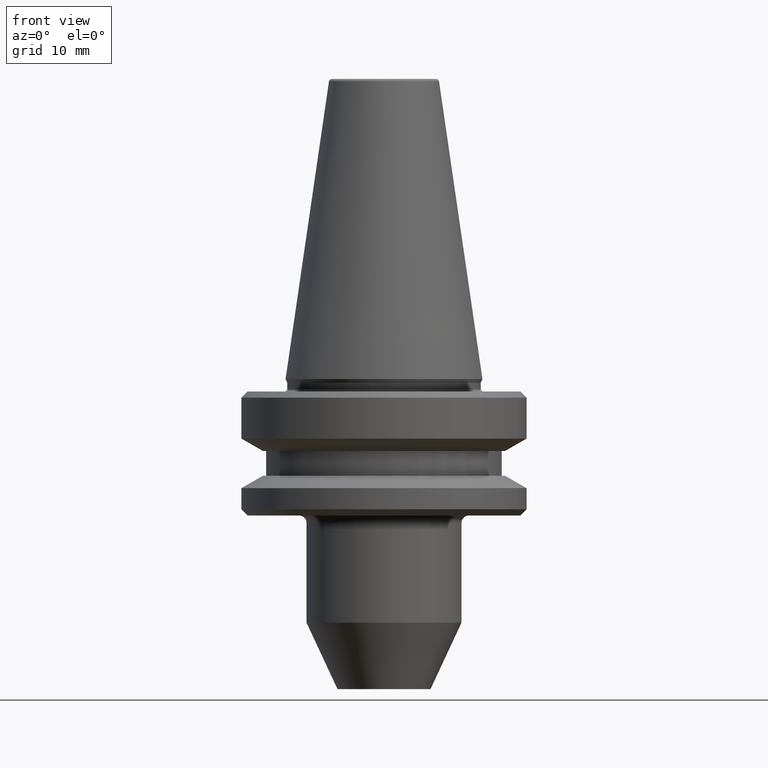
[diagram: clean part render]
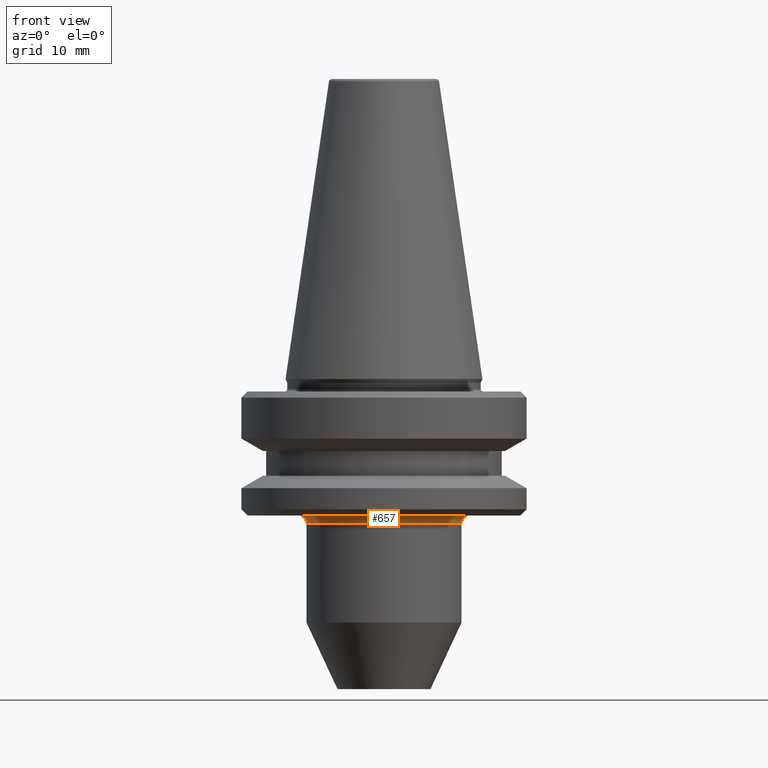
[diagram: same view with one face highlighted and labeled with its STEP entity id]
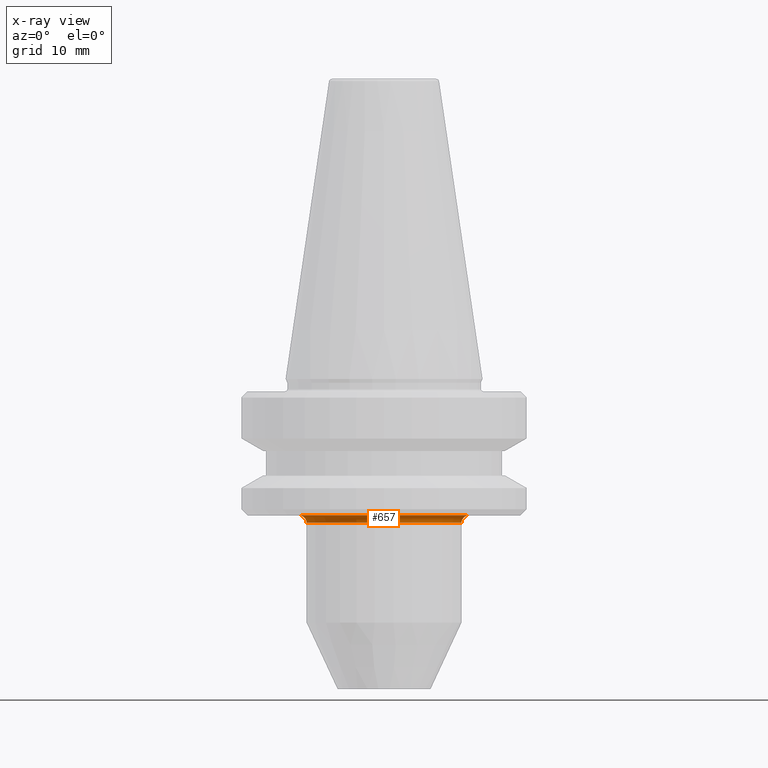
[diagram: x-ray of the same camera — body ghosted, the highlighted face saturated]
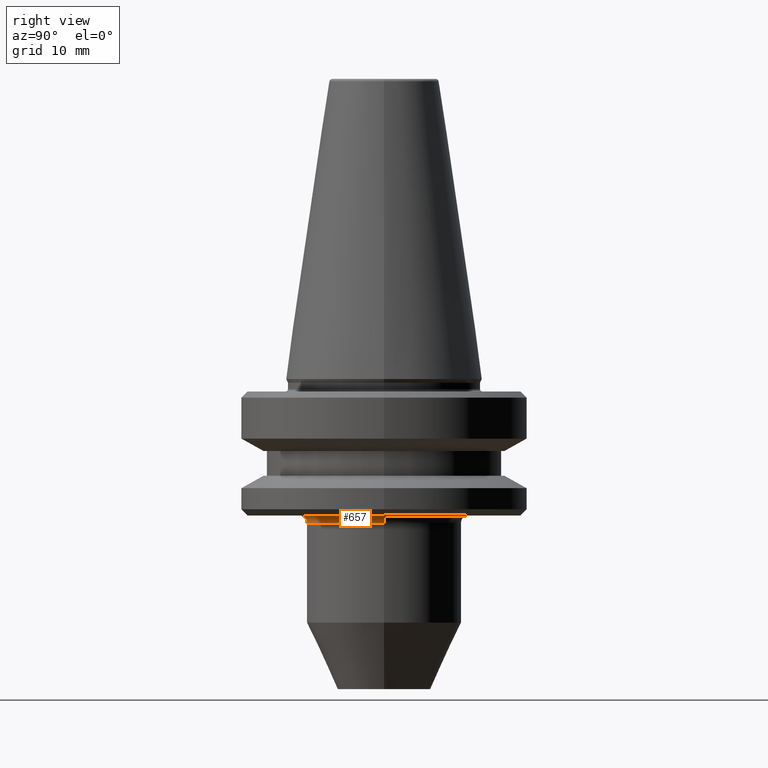
[diagram: same view with one face highlighted and labeled with its STEP entity id]
A machine part, front view. The second image highlights one B-rep face of the part: STEP entity #657.
The next image is the same camera in x-ray: the body ghosted, the highlighted face saturated — about 0% of this face is hidden behind the body in this view.
A second angle (right view) of the same face is appended — the face is thin or edge-on in the first view.
In plain terms, the highlighted toroidal blend (fillet) surface has major radius 13.7 mm and minor (blend) radius 1.2 mm.
Its self-contained STEP definition (entity closure, byte-faithful):
#14 = DIRECTION ( 'NONE',  ( 1.224646799147353200E-016, 1.000000000000000000, 0.0000000000000000000 ) ) ;
#32 = AXIS2_PLACEMENT_3D ( 'NONE', #122, #679, #368 ) ;
#60 = CARTESIAN_POINT ( 'NONE',  ( 13.70000000000000100, 0.0000000000000000000, -21.99999999999957400 ) ) ;
#71 = AXIS2_PLACEMENT_3D ( 'NONE', #681, #412, #341 ) ;
#93 = TOROIDAL_SURFACE ( 'NONE', #32, 13.70000000000000100, 1.199999999999998800 ) ;
#121 = CARTESIAN_POINT ( 'NONE',  ( 0.0000000000000000000, 0.0000000000000000000, -23.19999999999956900 ) ) ;
#122 = CARTESIAN_POINT ( 'NONE',  ( 0.0000000000000000000, 0.0000000000000000000, -23.19999999999957700 ) ) ;
#136 = DIRECTION ( 'NONE',  ( 1.000000000000000000, 0.0000000000000000000, 0.0000000000000000000 ) ) ;
#149 = EDGE_LOOP ( 'NONE', ( #776, #228, #232, #493 ) ) ;
#209 = EDGE_CURVE ( 'NONE', #542, #432, #571, .T. ) ;
#228 = ORIENTED_EDGE ( 'NONE', *, *, #365, .T. ) ;
#232 = ORIENTED_EDGE ( 'NONE', *, *, #501, .T. ) ;
#284 = CARTESIAN_POINT ( 'NONE',  ( -12.50000000000000400, 1.604287306883033200E-015, -23.19999999999956900 ) ) ;
#299 = CARTESIAN_POINT ( 'NONE',  ( -13.70000000000000100, 1.677766114831874000E-015, -21.99999999999957400 ) ) ;
#341 = DIRECTION ( 'NONE',  ( 0.0000000000000000000, 0.0000000000000000000, -1.000000000000000000 ) ) ;
#351 = CIRCLE ( 'NONE', #398, 12.50000000000000200 ) ;
#355 = CARTESIAN_POINT ( 'NONE',  ( -13.70000000000000100, 1.677766114831874000E-015, -23.19999999999957700 ) ) ;
#365 = EDGE_CURVE ( 'NONE', #777, #477, #684, .T. ) ;
#368 = DIRECTION ( 'NONE',  ( 1.000000000000000000, 0.0000000000000000000, 0.0000000000000000000 ) ) ;
#398 = AXIS2_PLACEMENT_3D ( 'NONE', #121, #912, #136 ) ;
#412 = DIRECTION ( 'NONE',  ( 0.0000000000000000000, -1.000000000000000000, 0.0000000000000000000 ) ) ;
#432 = VERTEX_POINT ( 'NONE', #752 ) ;
#477 = VERTEX_POINT ( 'NONE', #284 ) ;
#493 = ORIENTED_EDGE ( 'NONE', *, *, #209, .F. ) ;
#499 = DIRECTION ( 'NONE',  ( -1.000000000000000000, 1.224646799147353200E-016, 0.0000000000000000000 ) ) ;
#501 = EDGE_CURVE ( 'NONE', #477, #432, #351, .T. ) ;
#542 = VERTEX_POINT ( 'NONE', #60 ) ;
#571 = CIRCLE ( 'NONE', #71, 1.199999999999999700 ) ;
#573 = DIRECTION ( 'NONE',  ( -0.0000000000000000000, -0.0000000000000000000, 1.000000000000000000 ) ) ;
#584 = DIRECTION ( 'NONE',  ( 1.000000000000000000, 0.0000000000000000000, 0.0000000000000000000 ) ) ;
#657 = ADVANCED_FACE ( 'NONE', ( #913 ), #93, .F. ) ;
#665 = EDGE_CURVE ( 'NONE', #777, #542, #698, .T. ) ;
#679 = DIRECTION ( 'NONE',  ( -0.0000000000000000000, -0.0000000000000000000, 1.000000000000000000 ) ) ;
#681 = CARTESIAN_POINT ( 'NONE',  ( 13.70000000000000100, 0.0000000000000000000, -23.19999999999957700 ) ) ;
#683 = AXIS2_PLACEMENT_3D ( 'NONE', #355, #14, #499 ) ;
#684 = CIRCLE ( 'NONE', #683, 1.199999999999999700 ) ;
#698 = CIRCLE ( 'NONE', #875, 13.70000000000000100 ) ;
#752 = CARTESIAN_POINT ( 'NONE',  ( 12.50000000000000200, 0.0000000000000000000, -23.19999999999956900 ) ) ;
#776 = ORIENTED_EDGE ( 'NONE', *, *, #665, .F. ) ;
#777 = VERTEX_POINT ( 'NONE', #299 ) ;
#839 = CARTESIAN_POINT ( 'NONE',  ( 0.0000000000000000000, 0.0000000000000000000, -21.99999999999957400 ) ) ;
#875 = AXIS2_PLACEMENT_3D ( 'NONE', #839, #573, #584 ) ;
#912 = DIRECTION ( 'NONE',  ( -0.0000000000000000000, -0.0000000000000000000, 1.000000000000000000 ) ) ;
#913 = FACE_OUTER_BOUND ( 'NONE', #149, .T. ) ;